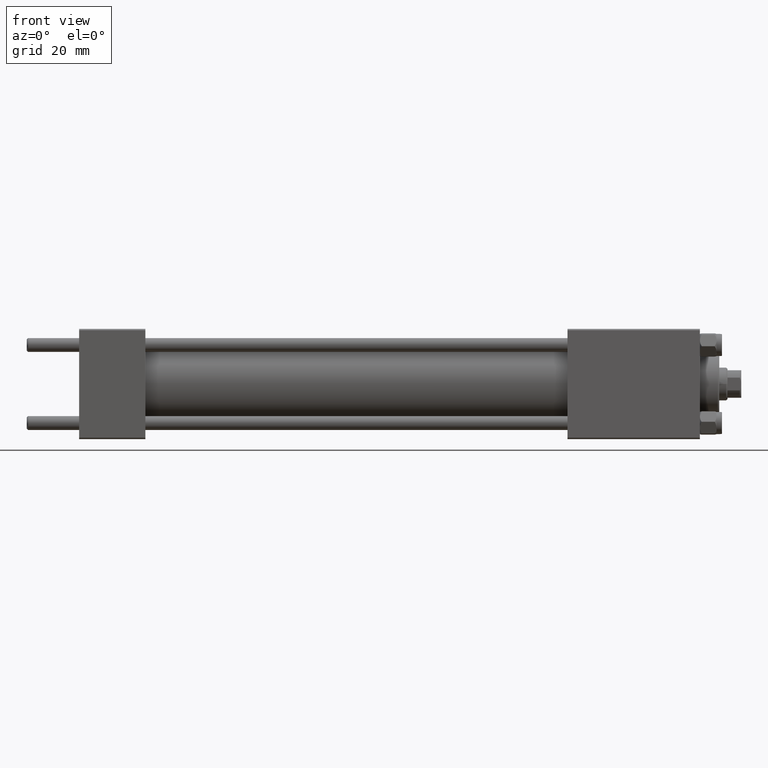
[diagram: clean part render]
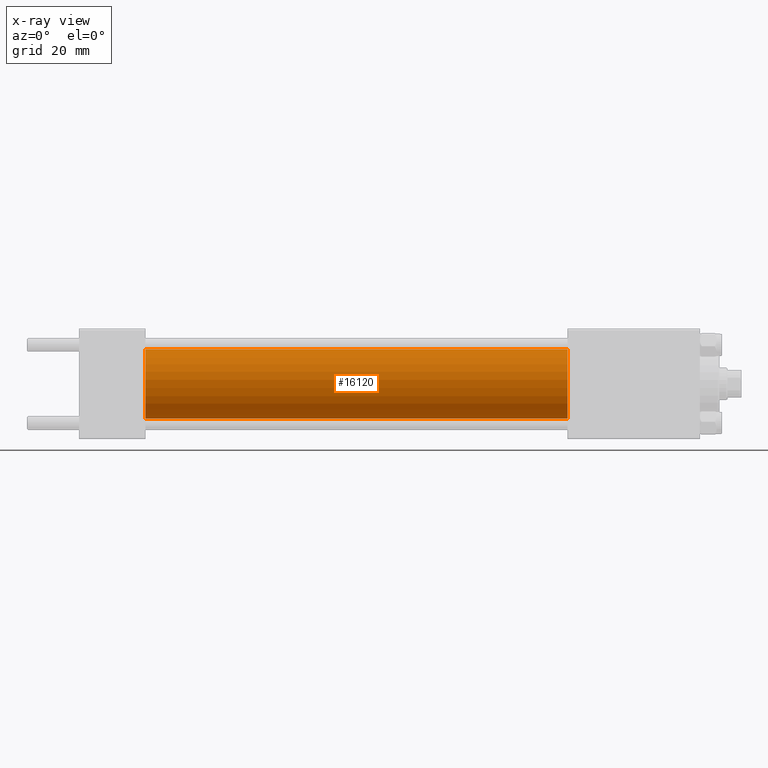
[diagram: x-ray — body ghosted, one internal face saturated and labeled with its STEP entity id]
A machine part, front view, then the same camera in x-ray: the body is ghosted and one INTERNAL B-rep face — a face not visible from any outside direction — is saturated and labeled: STEP entity #16120.
In plain terms, the highlighted cylindrical surface (edge-blend (fillet) strip) has radius 12.5 mm, axis along (-1, -0, -0).
Its self-contained STEP definition (entity closure, byte-faithful):
#4345 = LINE ( 'NONE', #11698, #42545 ) ;
#4640 = CARTESIAN_POINT ( 'NONE',  ( 177.0000000000000000, 0.000000000000000000, 12.49999999999999645 ) ) ;
#4725 = LINE ( 'NONE', #24434, #13256 ) ;
#9458 = DIRECTION ( 'NONE',  ( -1.000000000000000000, -0.000000000000000000, -0.000000000000000000 ) ) ;
#9573 = DIRECTION ( 'NONE',  ( 1.000000000000000000, 0.000000000000000000, 0.000000000000000000 ) ) ;
#9798 = EDGE_CURVE ( 'NONE', #38870, #28100, #45384, .T. ) ;
#9844 = ORIENTED_EDGE ( 'NONE', *, *, #42683, .T. ) ;
#10066 = CARTESIAN_POINT ( 'NONE',  ( 24.00000000000000000, 0.000000000000000000, 0.000000000000000000 ) ) ;
#11284 = VERTEX_POINT ( 'NONE', #4640 ) ;
#11698 = CARTESIAN_POINT ( 'NONE',  ( 177.0000000000000000, 0.000000000000000000, 12.49999999999999645 ) ) ;
#13256 = VECTOR ( 'NONE', #32011, 1000.000000000000000 ) ;
#15698 = DIRECTION ( 'NONE',  ( 0.000000000000000000, 0.000000000000000000, -1.000000000000000000 ) ) ;
#16120 = ADVANCED_FACE ( 'NONE', ( #17274 ), #29131, .F. ) ;
#17274 = FACE_OUTER_BOUND ( 'NONE', #25972, .T. ) ;
#21231 = AXIS2_PLACEMENT_3D ( 'NONE', #10066, #9573, #24961 ) ;
#24434 = CARTESIAN_POINT ( 'NONE',  ( 177.0000000000000000, 1.530808498934191127E-15, -12.49999999999999645 ) ) ;
#24845 = DIRECTION ( 'NONE',  ( 0.000000000000000000, 0.000000000000000000, 1.000000000000000000 ) ) ;
#24961 = DIRECTION ( 'NONE',  ( 0.000000000000000000, 0.000000000000000000, -1.000000000000000000 ) ) ;
#25972 = EDGE_LOOP ( 'NONE', ( #9844, #36392, #49036, #49879 ) ) ;
#26063 = CIRCLE ( 'NONE', #39838, 12.49999999999999645 ) ;
#26065 = DIRECTION ( 'NONE',  ( 1.000000000000000000, 0.000000000000000000, 0.000000000000000000 ) ) ;
#27207 = EDGE_CURVE ( 'NONE', #11284, #38870, #4345, .T. ) ;
#28100 = VERTEX_POINT ( 'NONE', #46776 ) ;
#29131 = CYLINDRICAL_SURFACE ( 'NONE', #34321, 12.49999999999999645 ) ;
#29630 = CARTESIAN_POINT ( 'NONE',  ( 177.0000000000000000, 0.000000000000000000, 0.000000000000000000 ) ) ;
#32011 = DIRECTION ( 'NONE',  ( -1.000000000000000000, -0.000000000000000000, -0.000000000000000000 ) ) ;
#34321 = AXIS2_PLACEMENT_3D ( 'NONE', #29630, #9458, #24845 ) ;
#36392 = ORIENTED_EDGE ( 'NONE', *, *, #39976, .T. ) ;
#38206 = DIRECTION ( 'NONE',  ( -1.000000000000000000, -0.000000000000000000, -0.000000000000000000 ) ) ;
#38870 = VERTEX_POINT ( 'NONE', #46022 ) ;
#39838 = AXIS2_PLACEMENT_3D ( 'NONE', #49267, #26065, #15698 ) ;
#39976 = EDGE_CURVE ( 'NONE', #43357, #28100, #4725, .T. ) ;
#42545 = VECTOR ( 'NONE', #38206, 1000.000000000000000 ) ;
#42683 = EDGE_CURVE ( 'NONE', #11284, #43357, #26063, .T. ) ;
#43357 = VERTEX_POINT ( 'NONE', #48353 ) ;
#45384 = CIRCLE ( 'NONE', #21231, 12.49999999999999645 ) ;
#46022 = CARTESIAN_POINT ( 'NONE',  ( 24.00000000000000000, 0.000000000000000000, 12.49999999999999645 ) ) ;
#46776 = CARTESIAN_POINT ( 'NONE',  ( 24.00000000000000000, 1.530808498934191127E-15, -12.49999999999999645 ) ) ;
#48353 = CARTESIAN_POINT ( 'NONE',  ( 177.0000000000000000, 1.530808498934191127E-15, -12.49999999999999645 ) ) ;
#49036 = ORIENTED_EDGE ( 'NONE', *, *, #9798, .F. ) ;
#49267 = CARTESIAN_POINT ( 'NONE',  ( 177.0000000000000000, 0.000000000000000000, 0.000000000000000000 ) ) ;
#49879 = ORIENTED_EDGE ( 'NONE', *, *, #27207, .F. ) ;